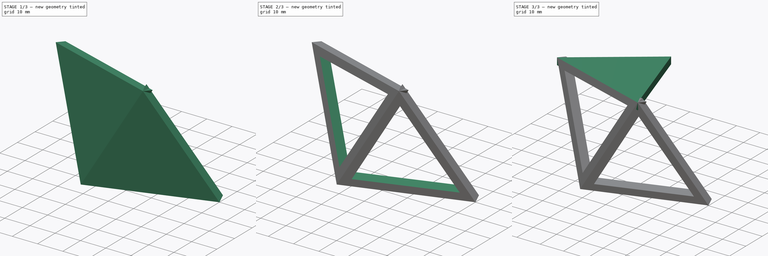
[diagram: build sequence overview — one tinted view per stage of 3, left to right]
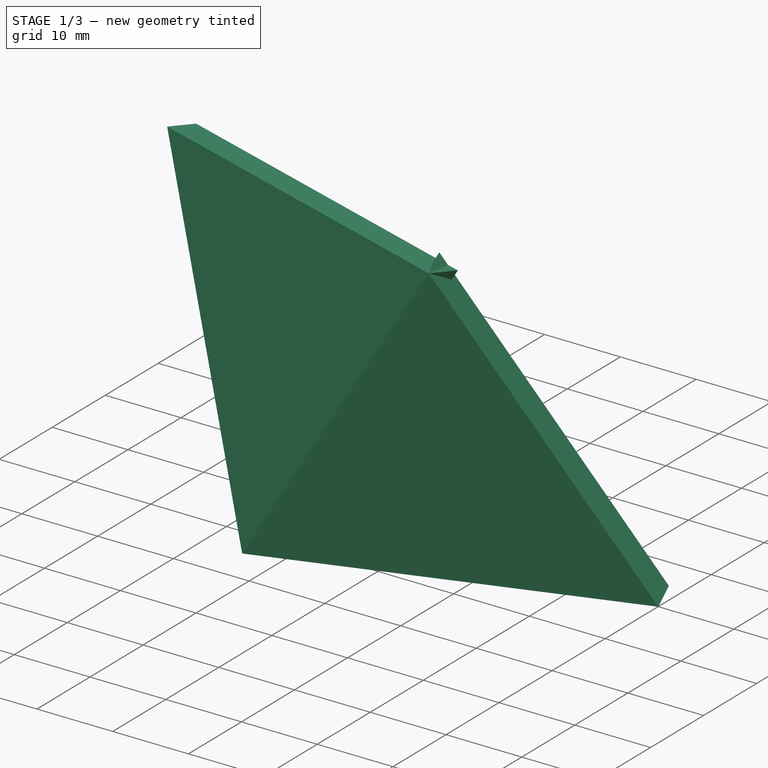
[diagram: stage 1 of 3 — iso view after this stage's code; geometry added in this stage tinted green]
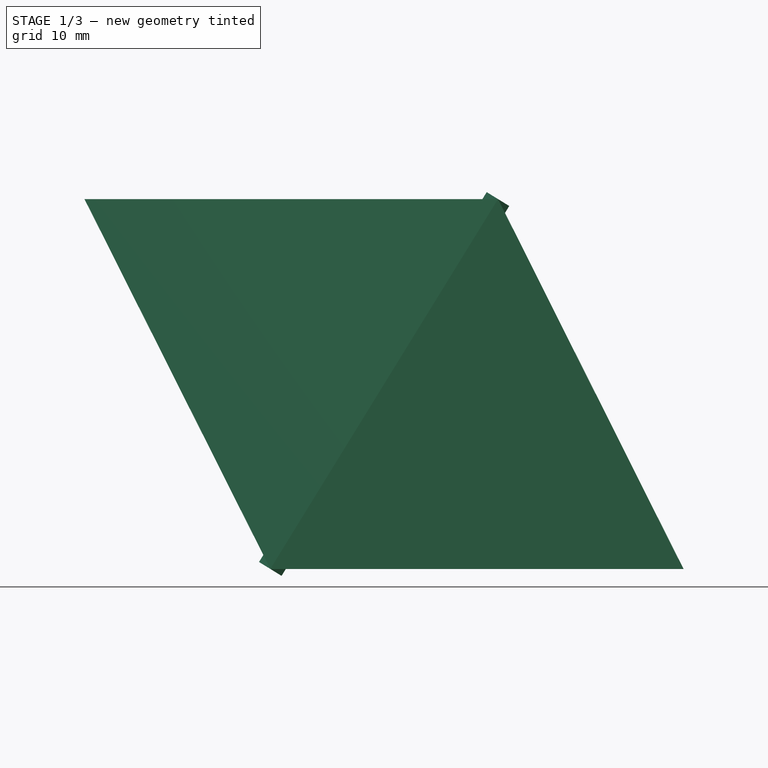
[diagram: stage 1 of 3 — front view after this stage's code; geometry added in this stage tinted green]
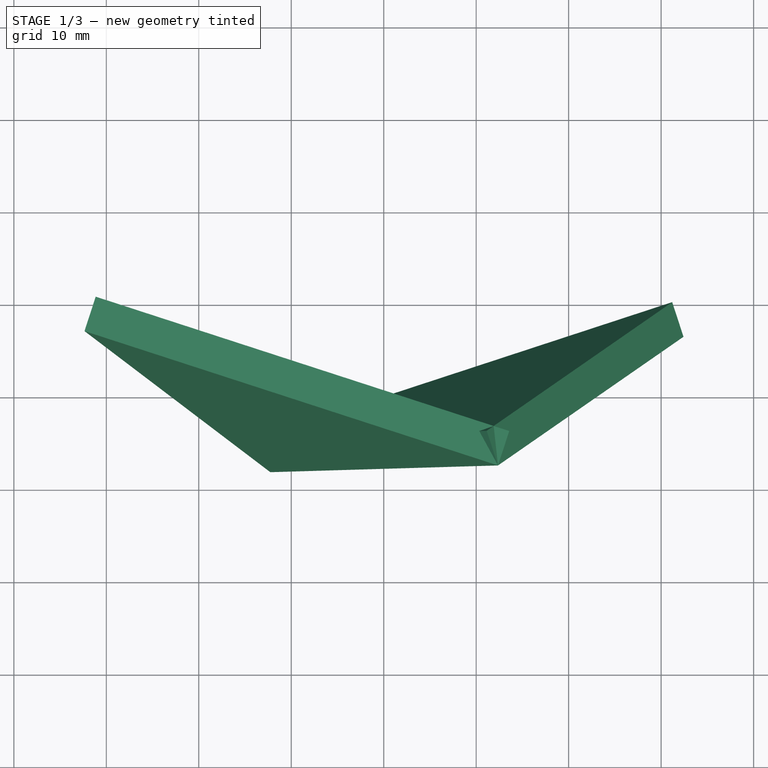
[diagram: stage 1 of 3 — top view after this stage's code; geometry added in this stage tinted green]
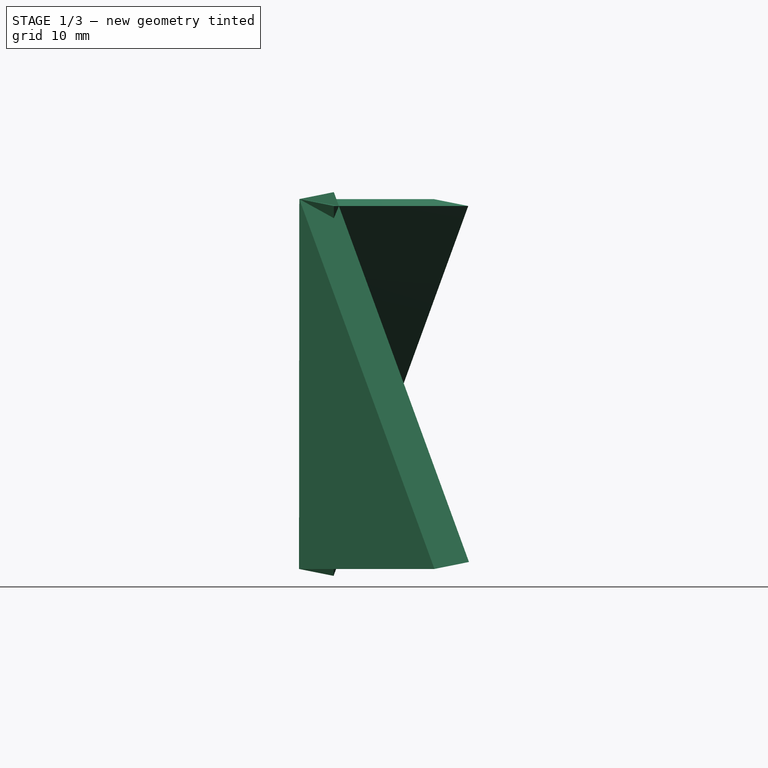
[diagram: stage 1 of 3 — right view after this stage's code; geometry added in this stage tinted green]
FCSTD DOCUMENT  (FreeCAD 0.20R26845 (Git))
Label: base
License: All rights reserved
LicenseURL: http://en.wikipedia.org/wiki/All_rights_reserved
objects: Sketcher::SketchObject×6, Part::Part2DObjectPython×4, PartDesign::Plane×3, PartDesign::Pad×3, PartDesign::Pocket×3, Part::FeaturePython×1, PartDesign::FeatureBase×1, PartDesign::Body×1
note: 28 computed .brp shape members not serialized (recipe doc carries the construction recipe); baked Part::Feature solids carry a one-line shape summary decoded from their .brp

FEATURE [Part::FeaturePython] Point  label="center"  # WARN: FeaturePython — macro-defined, semantics opaque (R4)
  X = 0
  Y = 0
  Z = 0
FEATURE [Part::Part2DObjectPython] Polygon  label="top_pentagon"  # Draft 2D object (typed FeaturePython)
  Area = 0
  ChamferSize = 0
  DrawMode = 0
  FacesNumber = 5
  FilletRadius = 0
  MakeFace = false
  Placement = pos=(0,0,20) rot=(0,0,1;0rad)
  Radius = 40
FEATURE [Part::Part2DObjectPython] Polygon001  label="bottom_pentagon"  # Draft 2D object (typed FeaturePython)
  Area = 0
  ChamferSize = 0
  DrawMode = 0
  FacesNumber = 5
  FilletRadius = 0
  MakeFace = false
  Placement = pos=(0,0,-20) rot=(0,0,1;3.14418rad)
  Radius = 40
FEATURE [PartDesign::Plane] DatumPlane
  Length = 117.869
  MapMode = 13
  Placement = pos=(-10.7541,-33.2092,6.66667) rot=(0.121149,0.764905,0.632648;2.94186rad)
  ResizeMode = 0
  Support = -> [Polygon,Polygon001]
  Width = 84.8514
FEATURE [Sketcher::SketchObject] Sketch
  ExternalGeometry = -> [Polygon,Polygon001]
  FullyConstrained = true
  MapMode = 5
  Placement = pos=(-10.7541,-33.2092,6.66667) rot=(0.121149,0.764905,0.632648;2.94186rad)
  Support = -> [DatumPlane]
  sketch-geometry (3):
    g0: LineSegment StartX=-23.477 StartY=13.5743 StartZ=0 EndX=-0.0688823 EndY=-27.1486 EndZ=0
    g1: LineSegment StartX=-0.0688823 StartY=-27.1486 StartZ=0 EndX=23.5459 EndY=13.5743 EndZ=0
    g2: LineSegment StartX=23.5459 StartY=13.5743 StartZ=0 EndX=-23.477 EndY=13.5743 EndZ=0
  constraints (6):
    c: Coincident(g0,g-3)
    c: Coincident(g0,g-5)
    c: Coincident(g0,g1)
    c: Coincident(g1,g-4)
    c: Coincident(g1,g2)
    c: Coincident(g2,g0)
FEATURE [PartDesign::FeatureBase] BaseFeature
  BaseFeature = -> Point
FEATURE [PartDesign::Pad] Pad
  BaseFeature = -> BaseFeature
  Direction = (0.303531,0.934173,-0.187589)
  Length = 4
  Length2 = 100
  Profile = -> Sketch
  ReferenceAxis = -> Sketch [N_Axis]
  Type = 0
FEATURE [PartDesign::Plane] DatumPlane001
  Length = 118.018
  MapMode = 13
  Placement = pos=(10.8399,-33.1814,-6.66667) rot=(-0.101266,0.634066,0.766619;3.38525rad)
  ResizeMode = 0
  Support = -> [Polygon001,Pad,Polygon]
  Width = 84.8902
FEATURE [Sketcher::SketchObject] Sketch001
  ExternalGeometry = -> [Polygon001,Pad,Polygon]
  FullyConstrained = true
  MapMode = 5
  Placement = pos=(10.8399,-33.1814,-6.66667) rot=(-0.101266,0.634066,0.766619;3.38525rad)
  Support = -> [DatumPlane001]
  sketch-geometry (3):
    g0: LineSegment StartX=0.0688823 StartY=27.1486 StartZ=0 EndX=23.477 EndY=-13.5743 EndZ=0
    g1: LineSegment StartX=23.477 StartY=-13.5743 StartZ=0 EndX=-23.5459 EndY=-13.5743 EndZ=0
    g2: LineSegment StartX=-23.5459 StartY=-13.5743 StartZ=0 EndX=0.0688823 EndY=27.1486 EndZ=0
  constraints (6):
    c: Coincident(g0,g-5)
    c: Coincident(g0,g-4)
    c: Coincident(g0,g1)
    c: Coincident(g1,g-3)
    c: Coincident(g1,g2)
    c: Coincident(g0,g2)
FEATURE [PartDesign::Pad] Pad001
  BaseFeature = -> Pad
  Direction = (-0.305943,0.933386,0.187589)
  Length = 4
  Length2 = 100
  Profile = -> Sketch001
  ReferenceAxis = -> Sketch001 [N_Axis]
  Type = 0
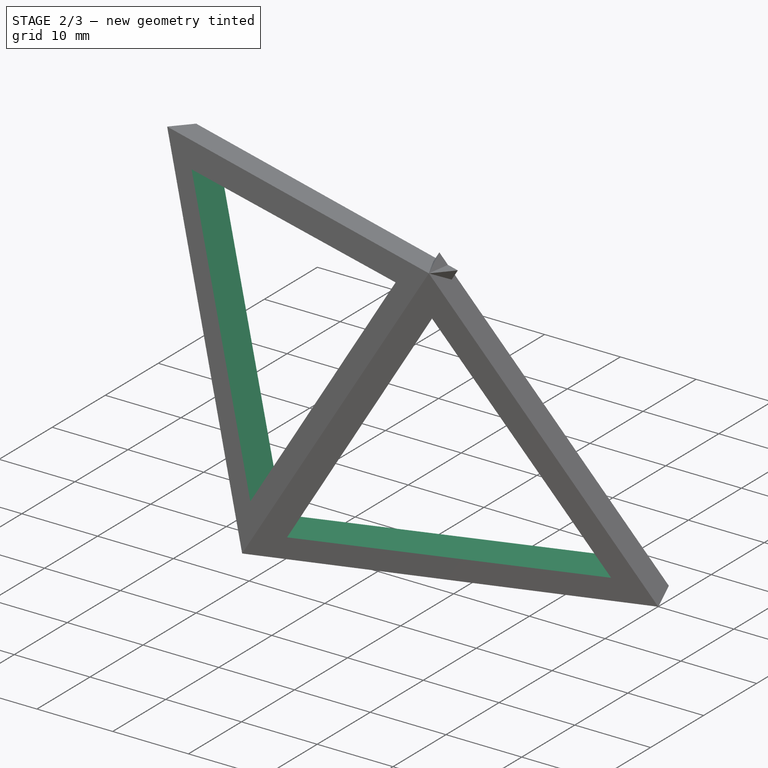
[diagram: stage 2 of 3 — iso view after this stage's code; geometry added in this stage tinted green]
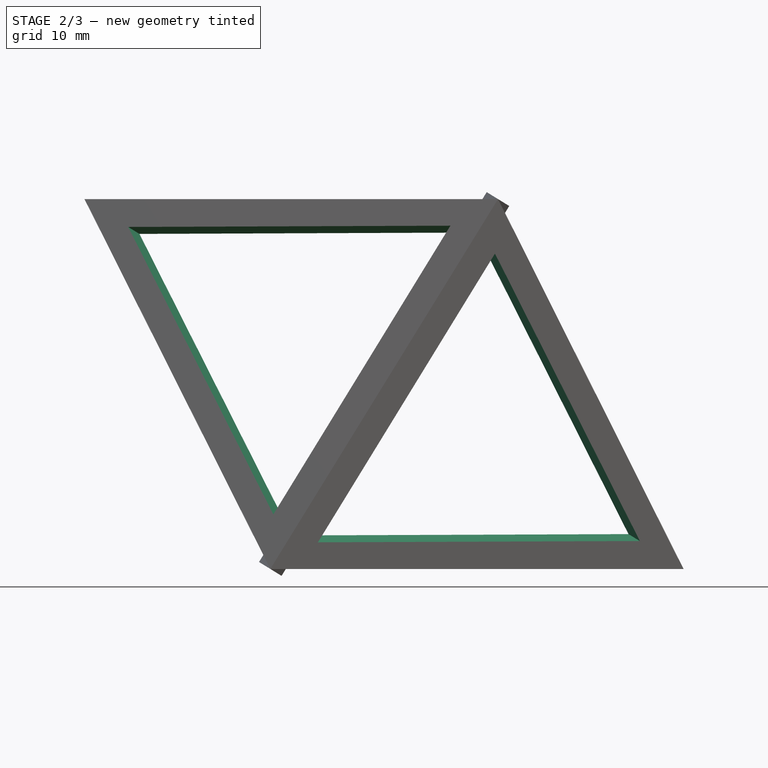
[diagram: stage 2 of 3 — front view after this stage's code; geometry added in this stage tinted green]
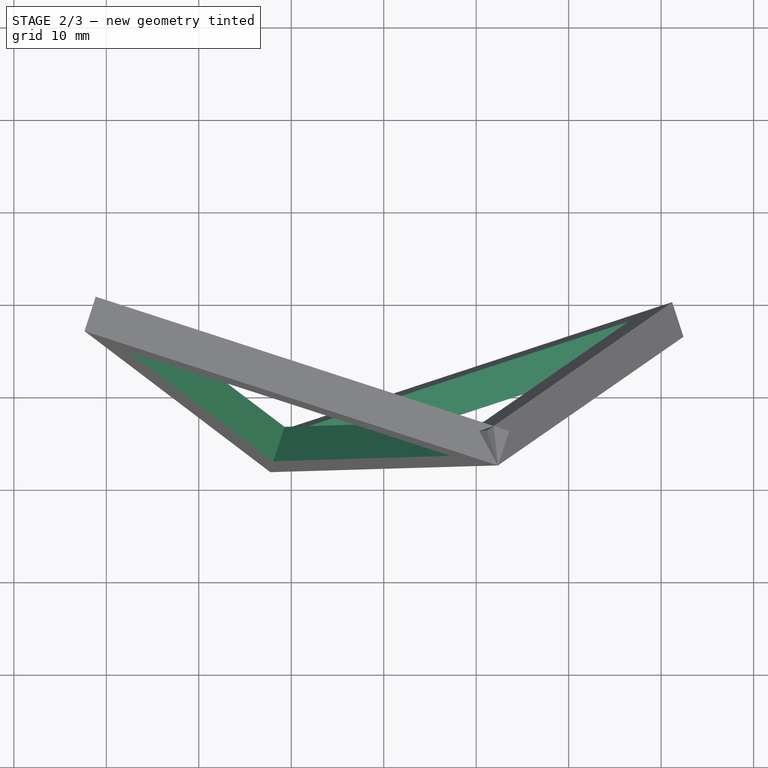
[diagram: stage 2 of 3 — top view after this stage's code; geometry added in this stage tinted green]
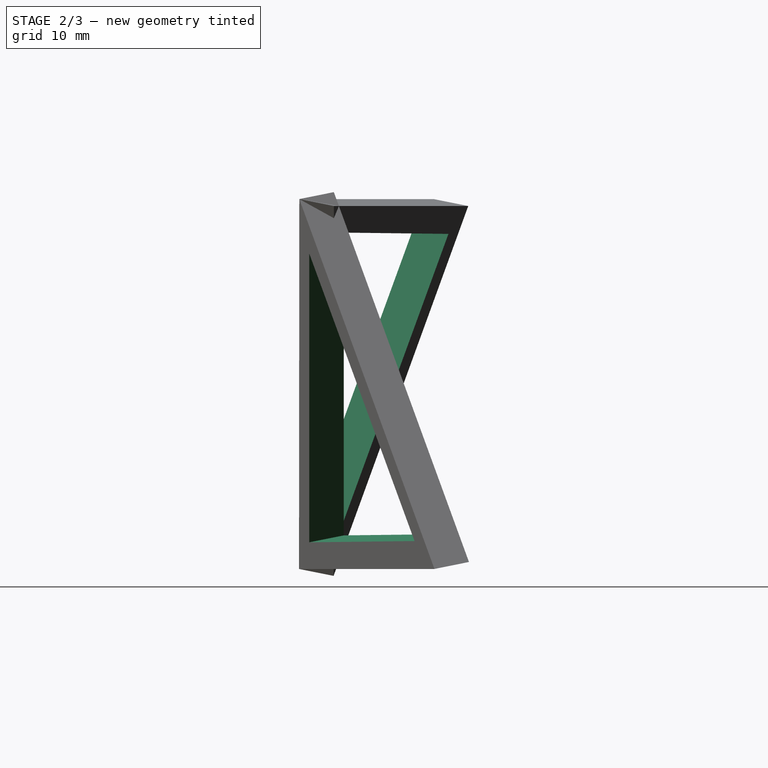
[diagram: stage 2 of 3 — right view after this stage's code; geometry added in this stage tinted green]
FEATURE [Sketcher::SketchObject] Sketch003
  ExternalGeometry = -> [Pad001,Polygon]
  FullyConstrained = true
  MapMode = 5
  Placement = pos=(-10.7869,-33.1986,6.66655) rot=(0.971211,-0.184284,-0.150957;1.40134rad)
  Support = -> [Pad001]
  sketch-geometry (5):
    g0: LineSegment StartX=-17.6823 StartY=11.6018 StartZ=0 EndX=-1.20631 EndY=-21.1143 EndZ=0
    g1: LineSegment StartX=-1.20631 StartY=-21.1143 StartZ=0 EndX=18.8886 EndY=9.51244 EndZ=0
    g2: LineSegment StartX=18.8886 StartY=9.51244 StartZ=0 EndX=-17.6823 EndY=11.6018 EndZ=0
    g3: Circle CenterX=0 CenterY=0 CenterZ=0 NormalX=0 NormalY=0 NormalZ=1 AngleXU=0 Radius=21.1487
    g4: LineSegment StartX=0 StartY=0 StartZ=0 EndX=-1.54854 EndY=-27.1045 EndZ=0
  constraints (13):
    c: Coincident(g0,g1)
    c: Coincident(g1,g2)
    c: Coincident(g2,g0)
    c: Equal(g0,g1)
    c: Equal(g0,g2)
    c: PointOnObject(g0,g3)
    c: PointOnObject(g1,g3)
    c: PointOnObject(g2,g3)
    c: Coincident(g3,g-1)
    c: Coincident(g4,g3)
    c: Coincident(g4,g-5)
    c: PointOnObject(g0,g4)
    c: Distance(g4,g0) = 6
FEATURE [Sketcher::SketchObject] Sketch004
  ExternalGeometry = -> [Polygon001,Polygon]
  FullyConstrained = true
  MapMode = 5
  Placement = pos=(10.8726,-33.1706,-6.66655) rot=(0.98009,0.125808,0.153609;1.78881rad)
  sketch-geometry (5):
    g0: LineSegment StartX=0 StartY=0 StartZ=0 EndX=1.56302 EndY=27.1037 EndZ=0
    g1: LineSegment StartX=1.21759 StartY=21.1136 StartZ=0 EndX=-18.8937 EndY=-9.50235 EndZ=0
    g2: LineSegment StartX=-18.8937 StartY=-9.50235 StartZ=0 EndX=17.6761 EndY=-11.6113 EndZ=0
    g3: LineSegment StartX=17.6761 StartY=-11.6113 StartZ=0 EndX=1.21759 EndY=21.1136 EndZ=0
    g4: Circle CenterX=0 CenterY=0 CenterZ=0 NormalX=0 NormalY=0 NormalZ=1 AngleXU=0 Radius=21.1487
  constraints (13):
    c: Coincident(g0,g-1)
    c: Coincident(g1,g2)
    c: Coincident(g2,g3)
    c: Coincident(g3,g1)
    c: Equal(g1,g2)
    c: Equal(g1,g3)
    c: PointOnObject(g1,g4)
    c: PointOnObject(g2,g4)
    c: PointOnObject(g3,g4)
    c: Coincident(g4,g0)
    c: PointOnObject(g3,g0)
    c: Distance(g1,g0) = 6
    c: Coincident(g0,g-4)
FEATURE [PartDesign::Pocket] Pocket
  BaseFeature = -> Pad001
  Direction = (0.303531,0.934173,-0.187589)
  Length = 0
  Length2 = 100
  Profile = -> Sketch003
  ReferenceAxis = -> Sketch003 [N_Axis]
  Type = 2
FEATURE [PartDesign::Pocket] Pocket001
  BaseFeature = -> Pocket
  Direction = (-0.305943,0.933386,0.187589)
  Length = 5
  Length2 = 100
  Profile = -> Sketch004
  ReferenceAxis = -> Sketch004 [N_Axis]
  Type = 2
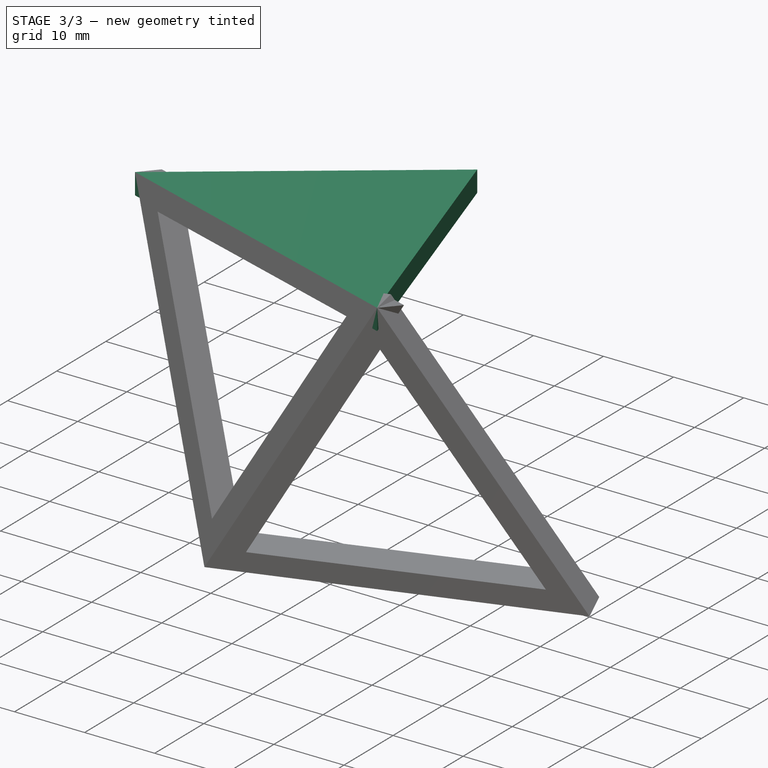
[diagram: stage 3 of 3 — iso view after this stage's code; geometry added in this stage tinted green]
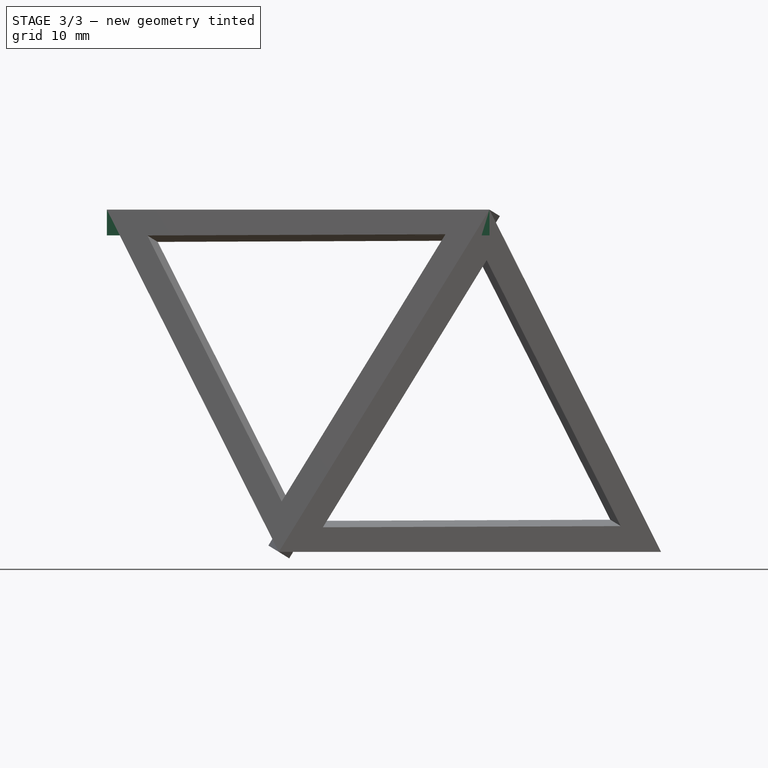
[diagram: stage 3 of 3 — front view after this stage's code; geometry added in this stage tinted green]
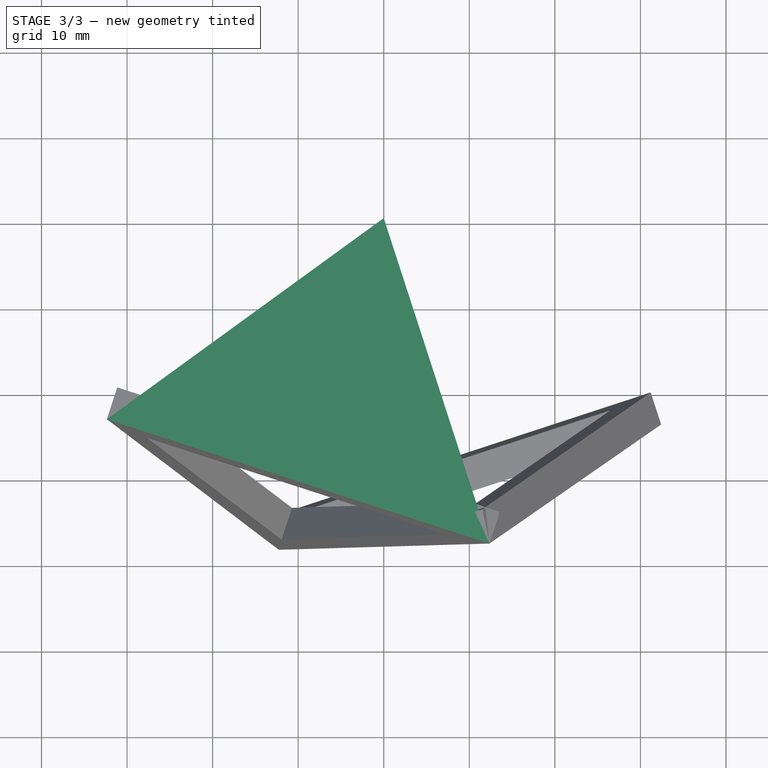
[diagram: stage 3 of 3 — top view after this stage's code; geometry added in this stage tinted green]
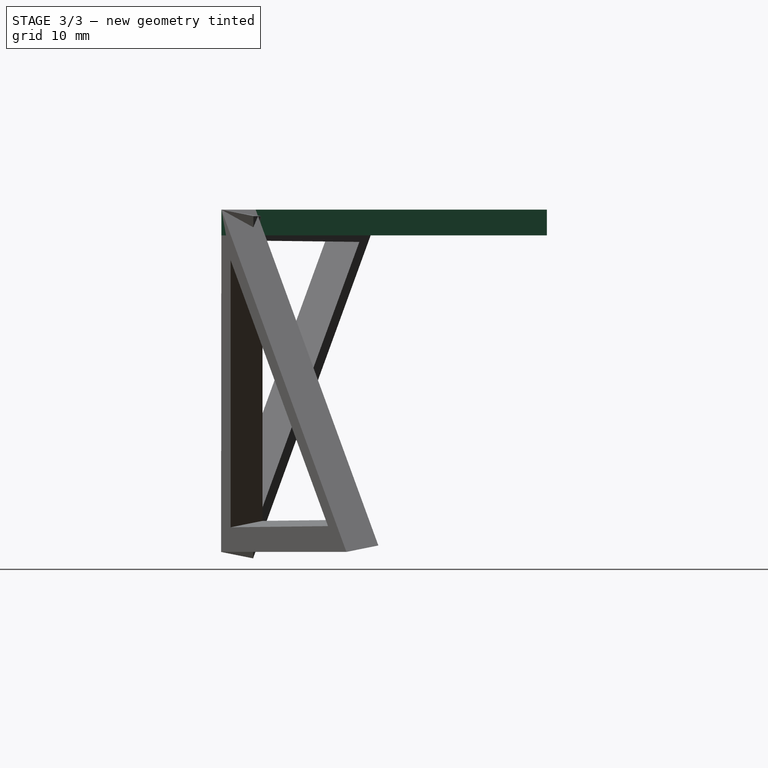
[diagram: stage 3 of 3 — right view after this stage's code; geometry added in this stage tinted green]
FEATURE [Part::Part2DObjectPython] Line  # Draft 2D object (typed FeaturePython)
  Area = 0
  ChamferSize = 0
  Closed = false
  End = (0,0,20)
  FilletRadius = 0
  Length = 20
  MakeFace = false
  Placement = pos=(0,0,0) rot=(1,0,0;1.5708rad)
  Points = (2) [(0,0,0),(6.12323e-16,20,4.44089e-15)]
  Start = (0,0,0)
  Subdivisions = 0
FEATURE [Part::Part2DObjectPython] Line001  # Draft 2D object (typed FeaturePython)
  Area = 0
  ChamferSize = 0
  Closed = false
  End = (0,0,-20)
  FilletRadius = 0
  Length = 20
  MakeFace = false
  Placement = pos=(0,0,0) rot=(1,0,0;1.5708rad)
  Points = (2) [(0,0,0),(-6.12323e-16,-20,-4.44089e-15)]
  Start = (0,0,0)
  Subdivisions = 0
FEATURE [PartDesign::Plane] DatumPlane002
  Length = 96.22
  MapMode = 13
  Placement = pos=(-6.66667,-20.5179,20) rot=(0,0,1;0rad)
  ResizeMode = 0
  Support = -> [Line,Polygon]
  Width = 97.2455
FEATURE [Sketcher::SketchObject] Sketch005
  ExternalGeometry = -> [Line,Polygon]
  FullyConstrained = true
  MapMode = 5
  Placement = pos=(-6.66667,-20.5179,20) rot=(0,0,1;0rad)
  Support = -> [DatumPlane002]
  sketch-geometry (3):
    g0: LineSegment StartX=6.66667 StartY=20.5179 StartZ=0 EndX=-25.694 EndY=-2.99352 EndZ=0
    g1: LineSegment StartX=-25.694 StartY=-2.99352 StartZ=0 EndX=19.0273 EndY=-17.5244 EndZ=0
    g2: LineSegment StartX=19.0273 StartY=-17.5244 StartZ=0 EndX=6.66667 EndY=20.5179 EndZ=0
  constraints (6):
    c: Coincident(g0,g-3)
    c: Coincident(g0,g-4)
    c: Coincident(g0,g1)
    c: Coincident(g1,g-5)
    c: Coincident(g1,g2)
    c: Coincident(g2,g0)
FEATURE [PartDesign::Pad] Pad002
  BaseFeature = -> Pocket001
  Direction = (0,0,1)
  Length = 3
  Length2 = 100
  Profile = -> Sketch005
  ReferenceAxis = -> Sketch005 [N_Axis]
  Reversed = true
  Type = 0
FEATURE [Sketcher::SketchObject] Sketch006
  ExternalGeometry = -> [Polygon]
  FullyConstrained = true
  MapMode = 5
  Placement = pos=(0,0,20) rot=(0,0,1;0rad)
  Support = -> [Pad002]
  sketch-geometry (6):
    g0: GeomPoint X=-32.3607 Y=-23.5114 Z=0
    g1: GeomPoint X=0 Y=0 Z=0
    g2: LineSegment StartX=0 StartY=0 StartZ=0 EndX=-32.3607 EndY=-23.5114 EndZ=0
    g3: LineSegment StartX=-32.3607 StartY=-23.5114 StartZ=0 EndX=12.3607 EndY=-38.0423 EndZ=0
    g4: LineSegment StartX=12.3607 StartY=-38.0423 StartZ=0 EndX=40 EndY=0 EndZ=0
    g5: LineSegment StartX=40 StartY=0 StartZ=0 EndX=0 EndY=0 EndZ=0
  constraints (10):
    c: Coincident(g2,g1)
    c: Coincident(g2,g0)
    c: Coincident(g2,g3)
    c: Coincident(g3,g-3)
    c: Coincident(g-1,g2)
    c: Coincident(g2,g-4)
    c: Coincident(g3,g4)
    c: Coincident(g4,g-5)
    c: Coincident(g4,g5)
    c: Coincident(g5,g2)
FEATURE [PartDesign::Pocket] Pocket002
  BaseFeature = -> Pad002
  Direction = (0,0,-1)
  Length = 5
  Length2 = 100
  Profile = -> Sketch006
  ReferenceAxis = -> Sketch006 [N_Axis]
  Reversed = true
  Type = 1
FEATURE [PartDesign::Body] Body
  BaseFeature = -> Point
  Group = -> [BaseFeature,DatumPlane,Sketch,Polygon001,Polygon,Pad,DatumPlane001,Sketch001,Pad001,Sketch003,Sketch004,Pocket,Pocket001,DatumPlane002,Line,Line001,Sketch005,Pad002,Sketch006,Pocket002]
  Origin = -> Origin
  Tip = -> Pocket002
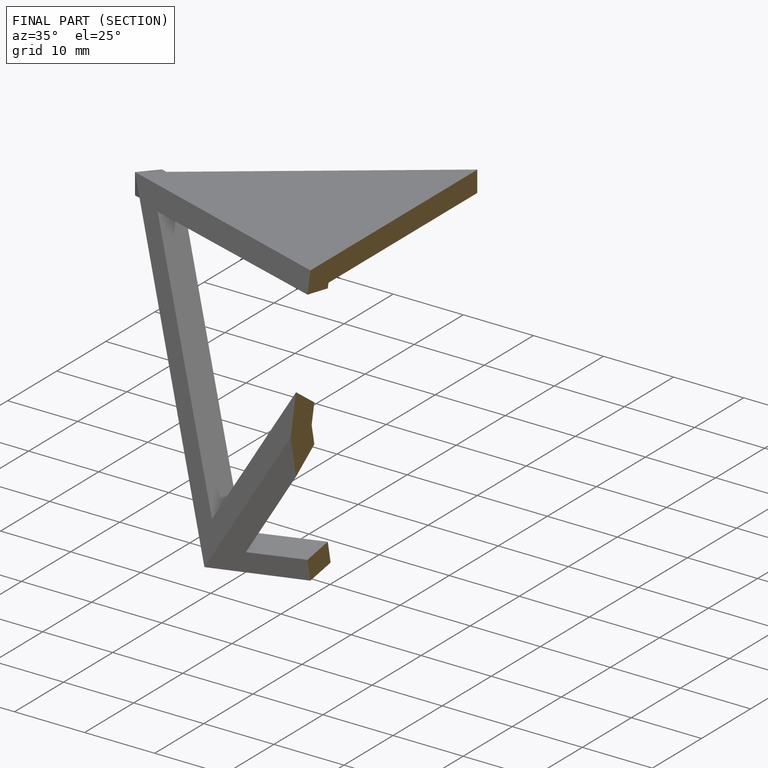
[diagram: finished part — half-section view (interior)]
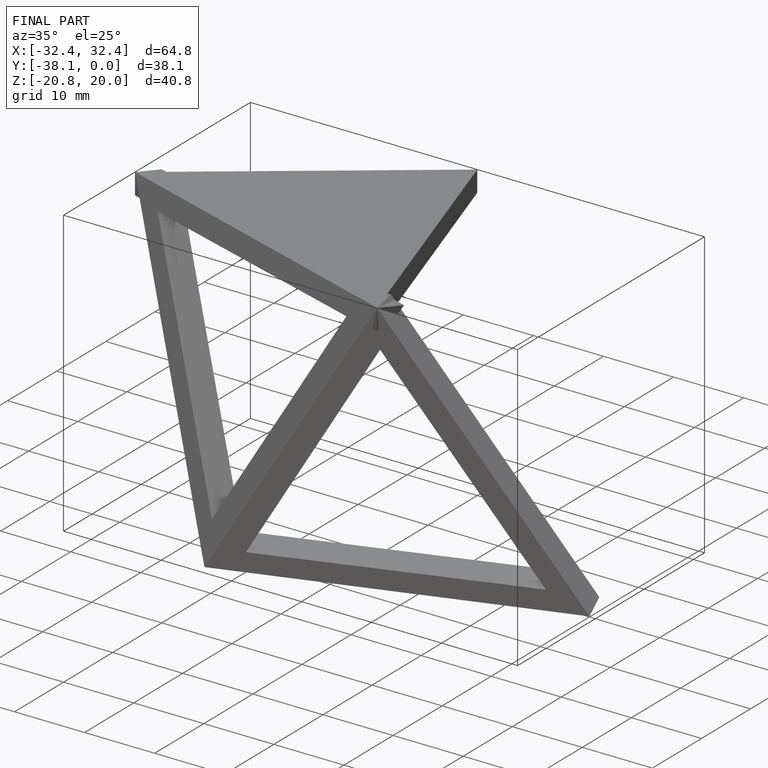
[diagram: finished part — iso view with bounding-box wireframe]
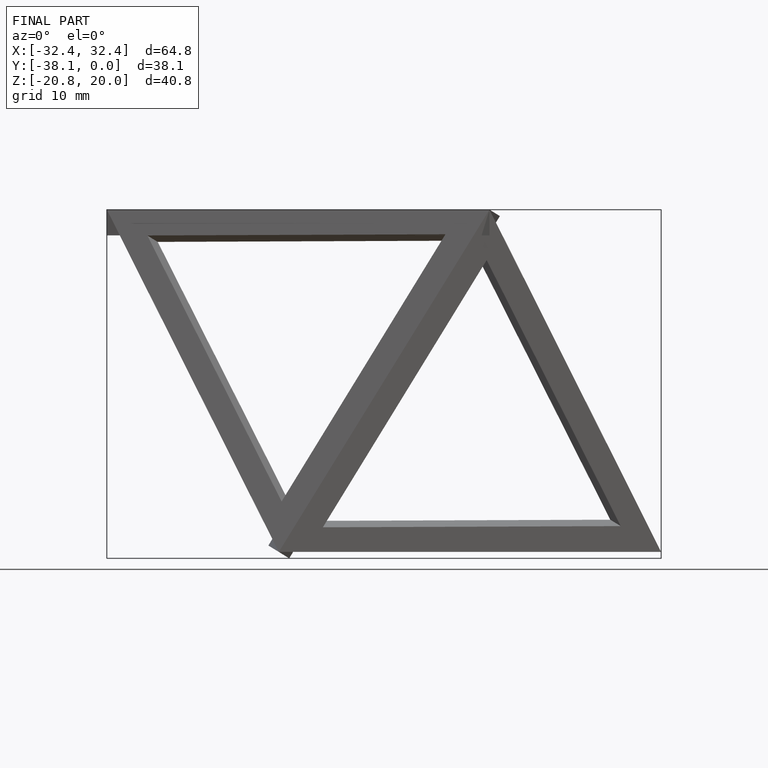
[diagram: finished part — front view with bounding-box wireframe]
